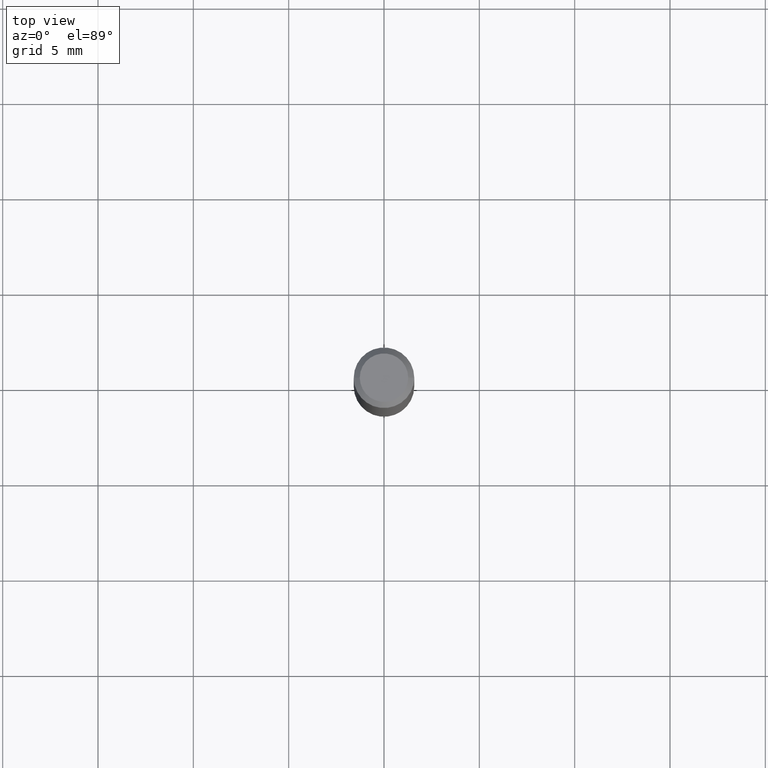
[diagram: clean part render]
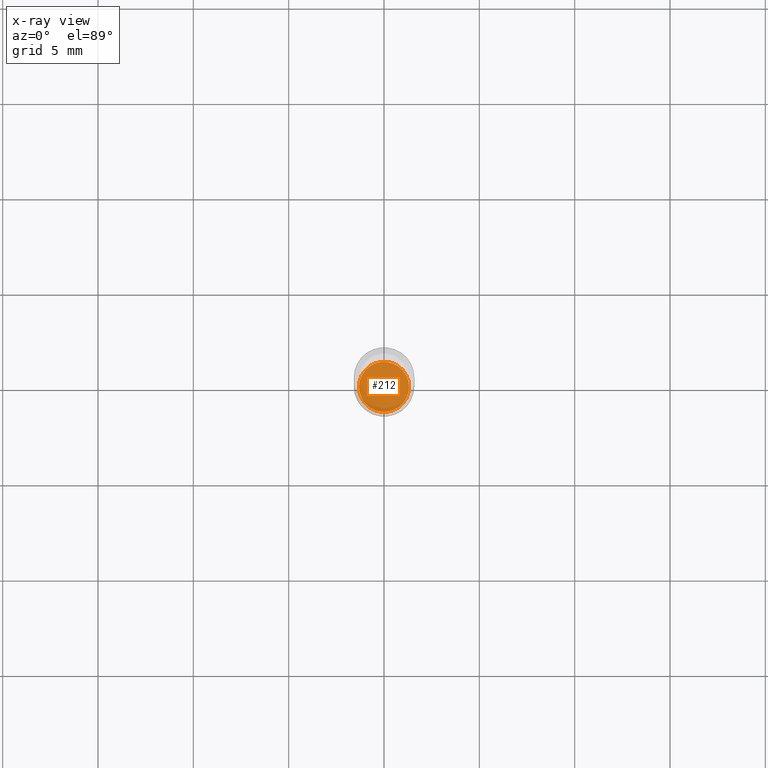
[diagram: x-ray — body ghosted, one internal face saturated and labeled with its STEP entity id]
A machine part, top view, then the same camera in x-ray: the body is ghosted and one INTERNAL B-rep face — a face not visible from any outside direction — is saturated and labeled: STEP entity #212.
In plain terms, the highlighted planar face has unit normal (-0, 0, 1).
Its self-contained STEP definition (entity closure, byte-faithful):
#30 = CARTESIAN_POINT ( 'NONE',  ( 2.690015686803650369E-29, -3.840629472727460101E-15, -1.100000000000000089 ) ) ;
#55 = EDGE_LOOP ( 'NONE', ( #343, #177 ) ) ;
#125 = VERTEX_POINT ( 'NONE', #444 ) ;
#154 = AXIS2_PLACEMENT_3D ( 'NONE', #298, #306, #414 ) ;
#155 = CARTESIAN_POINT ( 'NONE',  ( 2.690015686803650369E-29, -3.840629472727460101E-15, -1.100000000000000089 ) ) ;
#158 = EDGE_CURVE ( 'NONE', #458, #125, #163, .T. ) ;
#163 = CIRCLE ( 'NONE', #337, 0.05164999999999999453 ) ;
#172 = AXIS2_PLACEMENT_3D ( 'NONE', #155, #303, #389 ) ;
#177 = ORIENTED_EDGE ( 'NONE', *, *, #158, .F. ) ;
#194 = PLANE ( 'NONE',  #154 ) ;
#212 = ADVANCED_FACE ( 'NONE', ( #385 ), #194, .F. ) ;
#221 = DIRECTION ( 'NONE',  ( 1.000000000000000000, -6.982962677686269077E-15, 0.000000000000000000 ) ) ;
#274 = CARTESIAN_POINT ( 'NONE',  ( -0.05164999999999999453, -3.470984922533256947E-15, -1.100000000000000089 ) ) ;
#298 = CARTESIAN_POINT ( 'NONE',  ( 2.690015686803650369E-29, -3.840629472727460101E-15, -1.100000000000000089 ) ) ;
#302 = CIRCLE ( 'NONE', #172, 0.05164999999999999453 ) ;
#303 = DIRECTION ( 'NONE',  ( -2.445468806185136597E-29, 3.491481338843145583E-15, 1.000000000000000000 ) ) ;
#306 = DIRECTION ( 'NONE',  ( -2.438088387897960049E-29, 3.491481338843145188E-15, 1.000000000000000000 ) ) ;
#337 = AXIS2_PLACEMENT_3D ( 'NONE', #30, #404, #221 ) ;
#343 = ORIENTED_EDGE ( 'NONE', *, *, #369, .F. ) ;
#369 = EDGE_CURVE ( 'NONE', #125, #458, #302, .T. ) ;
#385 = FACE_OUTER_BOUND ( 'NONE', #55, .T. ) ;
#389 = DIRECTION ( 'NONE',  ( 1.000000000000000000, -6.982962677686269077E-15, 0.000000000000000000 ) ) ;
#404 = DIRECTION ( 'NONE',  ( -2.445468806185136597E-29, 3.491481338843145583E-15, 1.000000000000000000 ) ) ;
#414 = DIRECTION ( 'NONE',  ( 1.000000000000000000, -6.982962677686265922E-15, 4.876176775795935793E-29 ) ) ;
#444 = CARTESIAN_POINT ( 'NONE',  ( 0.05164999999999999453, -4.201299495029956149E-15, -1.100000000000000089 ) ) ;
#458 = VERTEX_POINT ( 'NONE', #274 ) ;